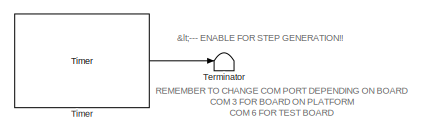
[diagram: root canvas - part 1/4, top left region]
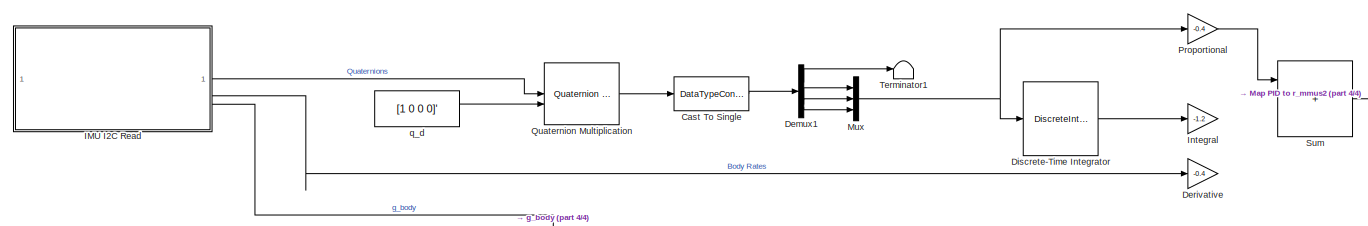
[diagram: root canvas - part 2/4, central region]
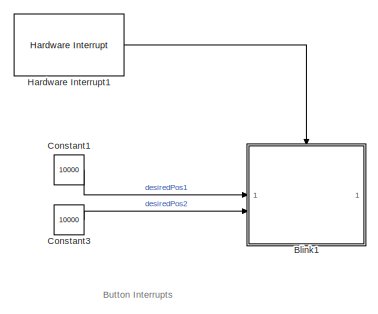
[diagram: root canvas - part 3/4, middle right region]
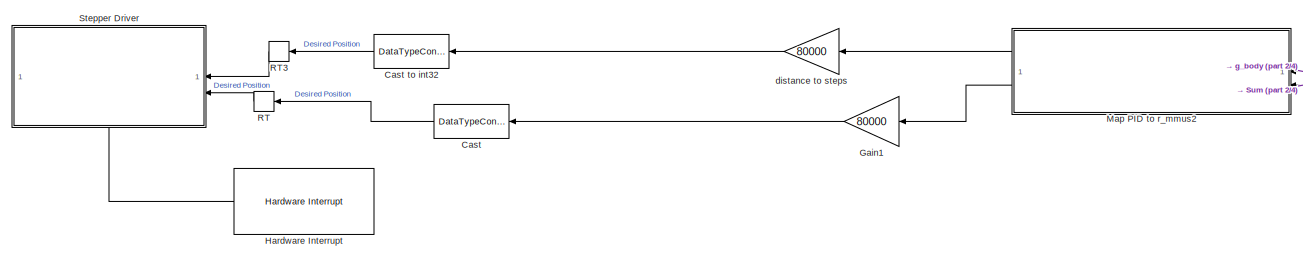
[diagram: root canvas - part 4/4, bottom left region]
MODEL slx_1e6a07afac99
KIND model
CONFIG AbsTol = auto
CONFIG EnableMultiTasking = on
CONFIG FixedStep = 0.01
CONFIG MaxStep = auto
CONFIG MinStep = auto
CONFIG RelTol = 1e-3
CONFIG SampleTimeConstraint = Unconstrained
CONFIG SolverName = FixedStepAuto
CONFIG StartTime = 0.0
CONFIG StopTime = inf
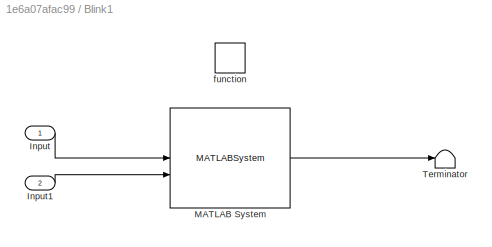
BLOCK [SubSystem] Blink1
  Commented = on
  TreatAsAtomicUnit = on
BLOCK [Inport] Blink1/Input
BLOCK [Inport] Blink1/Input1
  Port = 2
BLOCK [MATLABSystem] Blink1/MATLAB System
  MaskDisplay = disp('Stepper Drive');\nport_label('input',1,'desiredPos1');\nport_label('input',2,'desiredPos2');\nport_label('output',1,'x');
  MaskType = StepperDriveSysObj
  System = StepperDriveSysObj
BLOCK [Terminator] Blink1/Terminator
BLOCK [TriggerPort] Blink1/function
  StatesWhenEnabling = held
  TriggerType = function-call
  VariantControl = (inherit)
BLOCK [DataTypeConversion] Cast
  NameLocation = top
  OutDataTypeStr = int32
  RndMeth = Floor
  SaturateOnIntegerOverflow = off
BLOCK [DataTypeConversion] Cast To Single
  OutDataTypeStr = single
  RndMeth = Floor
  SaturateOnIntegerOverflow = off
BLOCK [DataTypeConversion] Cast to int32
  NameLocation = top
  OutDataTypeStr = int32
  RndMeth = Floor
  SaturateOnIntegerOverflow = off
BLOCK [Constant] Constant1
  Commented = on
  OutDataTypeStr = int32
  Value = 10000
BLOCK [Constant] Constant3
  Commented = on
  OutDataTypeStr = int32
  Value = 10000
BLOCK [Demux] Demux1
BLOCK [Gain] Derivative
  Gain = -0.4
BLOCK [DiscreteIntegrator] Discrete-Time Integrator
  ICPrevOutput = DiscIntNeverNeededParam
  ICPrevScaledInput = DiscIntNeverNeededParam
  InitialCondition = [0,0,0]'
  InitialConditionSetting = Auto
  IntegratorMethod = Integration: Trapezoidal
  OutDataTypeStr = single
  SampleTime = -1
BLOCK [Gain] Gain1
  Gain = 80000
  NameLocation = top
BLOCK [Reference] Hardware Interrupt  REF=stm32f4xxblockslib/Hardware Interrupt
  NameLocation = top
  SourceBlock = stm32f4xxblockslib/Hardware Interrupt
  SourceType = stm32cube.blocks.HardwareInterrupt
  UserDataPersistent = on
BLOCK [Reference] Hardware Interrupt1  REF=stm32f4xxblockslib/Hardware Interrupt
  Commented = on
  SourceBlock = stm32f4xxblockslib/Hardware Interrupt
  SourceType = stm32cube.blocks.HardwareInterrupt
  UserDataPersistent = on
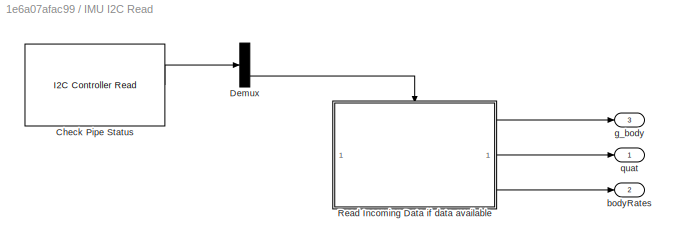
BLOCK [SubSystem] IMU I2C Read
BLOCK [Reference] IMU I2C Read/Check Pipe Status  REF=stm32blockslib/I2C Controller Read
  LibrarySourceBlock = stm32f4xxblockslib/I2C Controller Read
  SourceBlock = stm32blockslib/I2C Controller Read
  SourceType = stm32cube.blocks.I2CControllerRead
BLOCK [Demux] IMU I2C Read/Demux
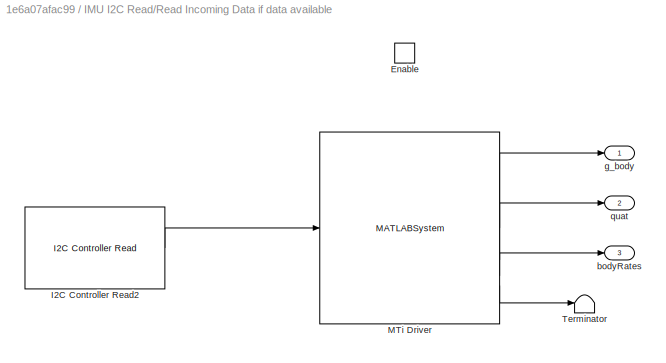
BLOCK [SubSystem] IMU I2C Read/Read Incoming Data if data available
  TreatAsAtomicUnit = on
BLOCK [EnablePort] IMU I2C Read/Read Incoming Data if data available/Enable
BLOCK [Reference] IMU I2C Read/Read Incoming Data if data available/I2C Controller Read2  REF=stm32blockslib/I2C Controller Read
  SourceBlock = stm32blockslib/I2C Controller Read
  SourceType = stm32cube.blocks.I2CControllerRead
BLOCK [MATLABSystem] IMU I2C Read/Read Incoming Data if data available/MTi Driver
  MaskDisplay = disp('MTi Driver');\nport_label('input',1,'bytesIn');\nport_label('output',1,'g_body');\nport_label('output',2,'quat');\nport_label('output',3,'bodyRates');\nport_label('output',4,'debug');
  MaskType = MTi_Driver_Sys_Obj
  System = MTi_Driver_Sys_Obj
BLOCK [Terminator] IMU I2C Read/Read Incoming Data if data available/Terminator
BLOCK [Outport] IMU I2C Read/Read Incoming Data if data available/bodyRates
  Port = 3
BLOCK [Outport] IMU I2C Read/Read Incoming Data if data available/g_body
BLOCK [Outport] IMU I2C Read/Read Incoming Data if data available/quat
  Port = 2
BLOCK [Outport] IMU I2C Read/bodyRates
  Port = 2
BLOCK [Outport] IMU I2C Read/g_body
  Port = 3
BLOCK [Outport] IMU I2C Read/quat
BLOCK [Gain] Integral
  Gain = -1.2
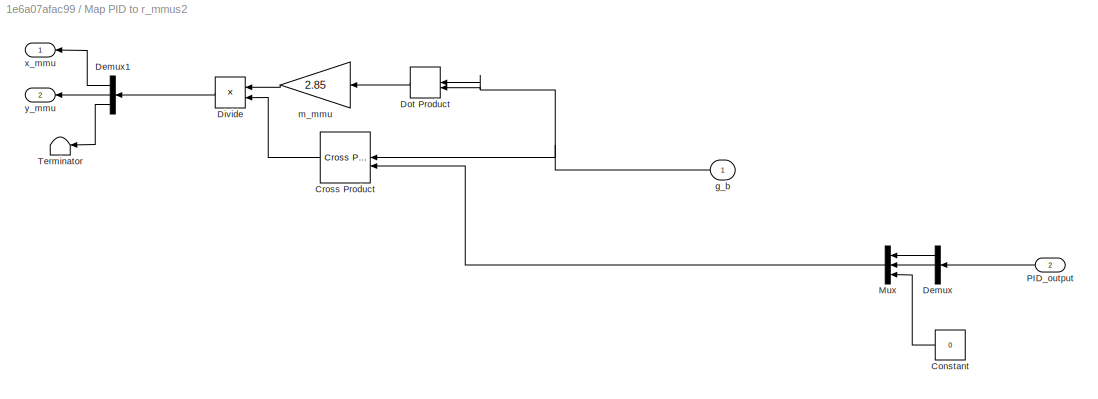
BLOCK [SubSystem] Map PID to r_mmus2
BLOCK [Constant] Map PID to r_mmus2/Constant
  NameLocation = top
  OutDataTypeStr = single
  Value = 0
BLOCK [Reference] Map PID to r_mmus2/Cross Product  REF=matrix_library/Cross Product
  NameLocation = top
  SourceBlock = matrix_library/Cross Product
  SourceType = CrossProduct
BLOCK [Demux] Map PID to r_mmus2/Demux
  NameLocation = top
  Outputs = 3
BLOCK [Demux] Map PID to r_mmus2/Demux1
  NameLocation = top
  Outputs = 3
BLOCK [Product] Map PID to r_mmus2/Divide
  Inputs = /*
  NameLocation = top
BLOCK [DotProduct] Map PID to r_mmus2/Dot Product
  NameLocation = top
  OutDataTypeStr = Inherit: Inherit via internal rule
BLOCK [Mux] Map PID to r_mmus2/Mux
  DisplayOption = bar
  Inputs = 3
  NameLocation = top
BLOCK [Inport] Map PID to r_mmus2/PID_output
  Port = 2
BLOCK [Terminator] Map PID to r_mmus2/Terminator
  NameLocation = top
BLOCK [Inport] Map PID to r_mmus2/g_b
BLOCK [Gain] Map PID to r_mmus2/m_mmu
  Gain = 2.85
  NameLocation = top
BLOCK [Outport] Map PID to r_mmus2/x_mmu
  NameLocation = top
BLOCK [Outport] Map PID to r_mmus2/y_mmu
  NameLocation = top
  Port = 2
BLOCK [Mux] Mux
  DisplayOption = bar
  Inputs = 3
BLOCK [Gain] Proportional
  Gain = -0.4
BLOCK [Reference] Quaternion Multiplication  REF=aerolibutil/Quaternion
Multiplication
  SourceBlock = aerolibutil/Quaternion\nMultiplication
  SourceType = Quaternion Multiplication
BLOCK [RateTransition] RT
  Deterministic = off
BLOCK [RateTransition] RT3
  Deterministic = off
  NameLocation = top
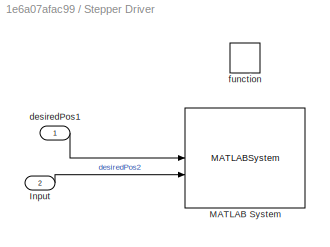
BLOCK [SubSystem] Stepper Driver
  NameLocation = top
  TreatAsAtomicUnit = on
BLOCK [Inport] Stepper Driver/Input
  Port = 2
BLOCK [MATLABSystem] Stepper Driver/MATLAB System
  MaskDisplay = disp('Stepper Drive');\nport_label('input',1,'desiredPos1');\nport_label('input',2,'desiredPos2');
  MaskType = StepperDriveSysObj
  System = StepperDriveSysObj
BLOCK [Inport] Stepper Driver/desiredPos1
BLOCK [TriggerPort] Stepper Driver/function
  StatesWhenEnabling = held
  TriggerType = function-call
  VariantControl = (inherit)
BLOCK [Sum] Sum
  IconShape = rectangular
  Inputs = +++
BLOCK [Terminator] Terminator
BLOCK [Terminator] Terminator1
BLOCK [Reference] Timer  REF=stm32blockslib/Timer
  LibrarySourceBlock = stm32f4xxblockslib/Timer
  SourceBlock = stm32blockslib/Timer
  SourceType = stm32cube.blocks.TimerBlock
BLOCK [Gain] distance to steps
  Gain = 80000
  NameLocation = top
BLOCK [Constant] q_d
  OutDataTypeStr = single
  Value = [1 0 0 0]'
ANNOTATION (root): <--- ENABLE FOR STEP GENERATION!!
ANNOTATION (root): Button Interrupts
ANNOTATION (root): REMEMBER TO CHANGE COM PORT DEPENDING ON BOARD COM 3 FOR BOARD ON PLATFORM COM 6 FOR TEST BOARD
LINE Blink1/Input1:1 -> Blink1/MATLAB System:2
LINE Blink1/Input:1 -> Blink1/MATLAB System:1
LINE Blink1/MATLAB System:1 -> Blink1/Terminator:1
LINE Cast To Single:1 -> Demux1:1
LINE Cast to int32:1 -> RT3:1
LINE Cast:1 -> RT:1
LINE Constant1:1 -> Blink1:1
LINE Constant3:1 -> Blink1:2
LINE Demux1:1 -> Terminator1:1
LINE Demux1:2 -> Mux:1
LINE Demux1:3 -> Mux:2
LINE Demux1:4 -> Mux:3
LINE Discrete-Time Integrator:1 -> Integral:1
LINE Gain1:1 -> Cast:1
LINE Hardware Interrupt1:1 -> Blink1:trigger
LINE Hardware Interrupt:1 -> Stepper Driver:trigger
LINE IMU I2C Read/Check Pipe Status:1 -> IMU I2C Read/Demux:1
LINE IMU I2C Read/Demux:3 -> IMU I2C Read/Read Incoming Data if data available:enable
LINE IMU I2C Read/Read Incoming Data if data available/I2C Controller Read2:1 -> IMU I2C Read/Read Incoming Data if data available/MTi Driver:1
LINE IMU I2C Read/Read Incoming Data if data available/MTi Driver:1 -> IMU I2C Read/Read Incoming Data if data available/g_body:1
LINE IMU I2C Read/Read Incoming Data if data available/MTi Driver:2 -> IMU I2C Read/Read Incoming Data if data available/quat:1
LINE IMU I2C Read/Read Incoming Data if data available/MTi Driver:3 -> IMU I2C Read/Read Incoming Data if data available/bodyRates:1
LINE IMU I2C Read/Read Incoming Data if data available/MTi Driver:4 -> IMU I2C Read/Read Incoming Data if data available/Terminator:1
LINE IMU I2C Read/Read Incoming Data if data available:1 -> IMU I2C Read/g_body:1
LINE IMU I2C Read/Read Incoming Data if data available:2 -> IMU I2C Read/quat:1
LINE IMU I2C Read/Read Incoming Data if data available:3 -> IMU I2C Read/bodyRates:1
LINE IMU I2C Read:1 -> Quaternion Multiplication:1
LINE IMU I2C Read:2 -> Derivative:1
LINE IMU I2C Read:3 -> Map PID to r_mmus2:1
LINE Map PID to r_mmus2/Constant:1 -> Map PID to r_mmus2/Mux:3
LINE Map PID to r_mmus2/Cross Product:1 -> Map PID to r_mmus2/Divide:2
LINE Map PID to r_mmus2/Demux1:1 -> Map PID to r_mmus2/x_mmu:1
LINE Map PID to r_mmus2/Demux1:2 -> Map PID to r_mmus2/y_mmu:1
LINE Map PID to r_mmus2/Demux1:3 -> Map PID to r_mmus2/Terminator:1
LINE Map PID to r_mmus2/Demux:1 -> Map PID to r_mmus2/Mux:1
LINE Map PID to r_mmus2/Demux:2 -> Map PID to r_mmus2/Mux:2
LINE Map PID to r_mmus2/Divide:1 -> Map PID to r_mmus2/Demux1:1
LINE Map PID to r_mmus2/Dot Product:1 -> Map PID to r_mmus2/m_mmu:1
LINE Map PID to r_mmus2/Mux:1 -> Map PID to r_mmus2/Cross Product:2
LINE Map PID to r_mmus2/PID_output:1 -> Map PID to r_mmus2/Demux:1
NET Map PID to r_mmus2/g_b:1 -> Map PID to r_mmus2/Cross Product:1, Map PID to r_mmus2/Dot Product:1, Map PID to r_mmus2/Dot Product:2
LINE Map PID to r_mmus2/m_mmu:1 -> Map PID to r_mmus2/Divide:1
LINE Map PID to r_mmus2:1 -> distance to steps:1
LINE Map PID to r_mmus2:2 -> Gain1:1
NET Mux:1 -> Discrete-Time Integrator:1, Proportional:1
LINE Proportional:1 -> Sum:1
LINE Quaternion Multiplication:1 -> Cast To Single:1
LINE RT3:1 -> Stepper Driver:1
LINE RT:1 -> Stepper Driver:2
LINE Stepper Driver/Input:1 -> Stepper Driver/MATLAB System:2
LINE Stepper Driver/desiredPos1:1 -> Stepper Driver/MATLAB System:1
LINE Sum:1 -> Map PID to r_mmus2:2
LINE Timer:1 -> Terminator:1
LINE distance to steps:1 -> Cast to int32:1
LINE q_d:1 -> Quaternion Multiplication:2
note: NET lines group one-source signal fan-out (src -> all destinations, sorted); 1:1 wires keep LINE
